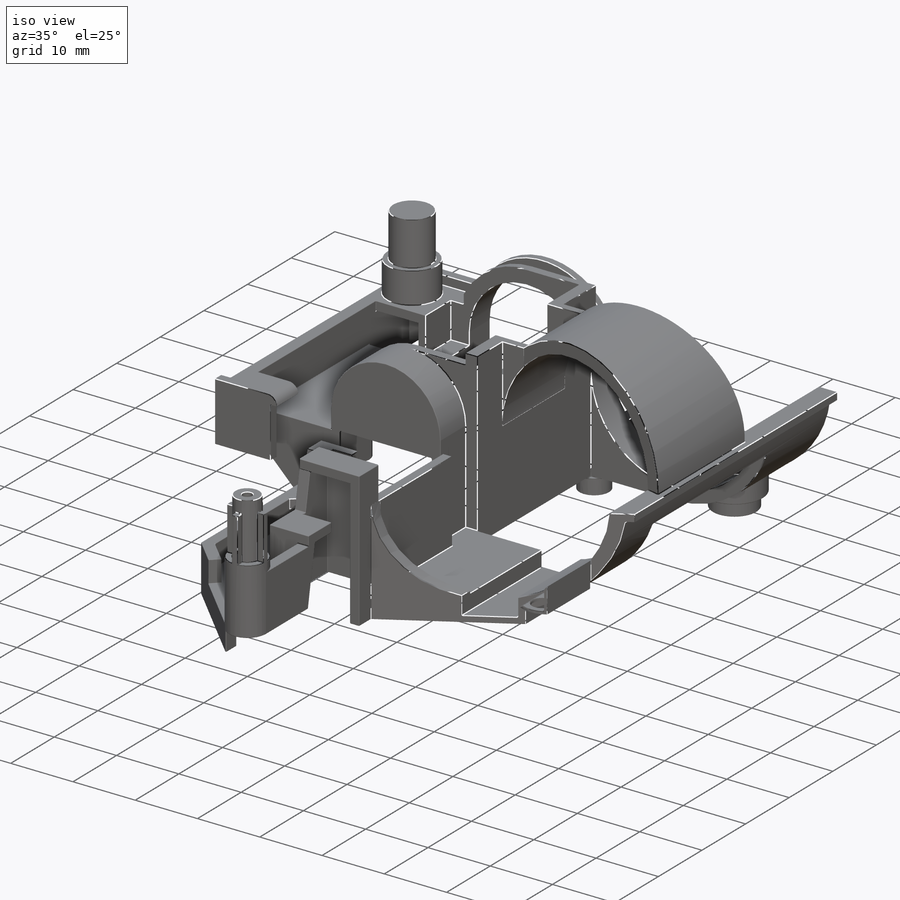
[diagram: iso view]
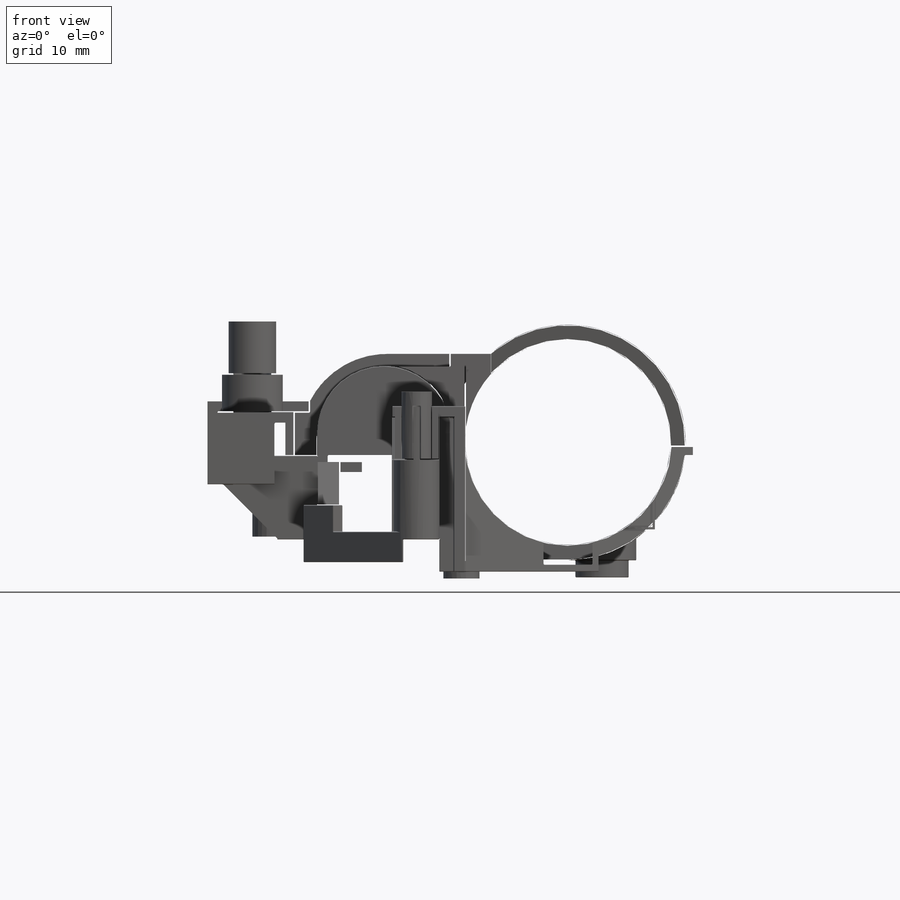
[diagram: front view]
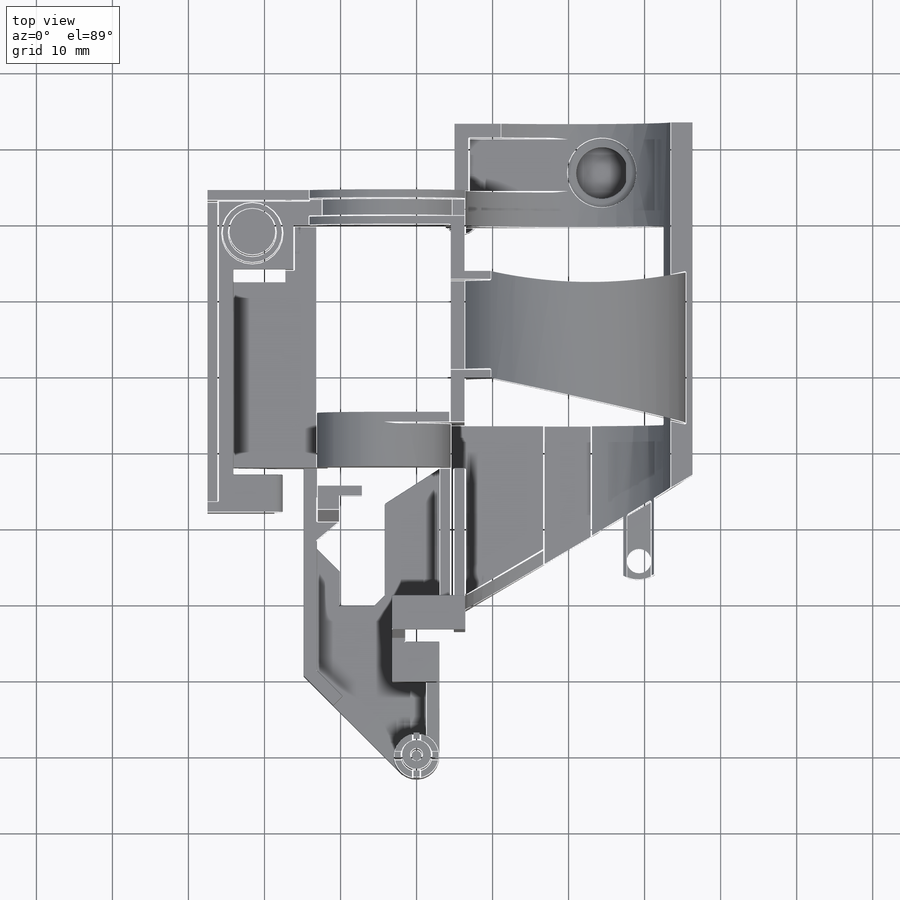
[diagram: top view]
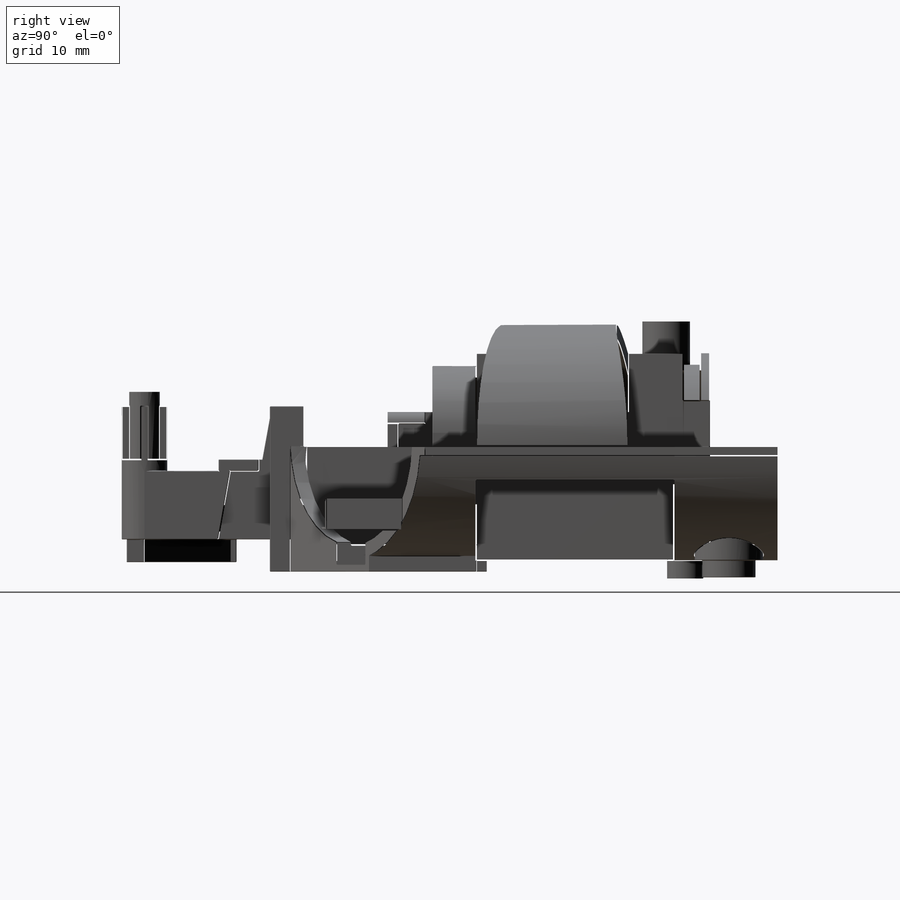
[diagram: right view]
SOLIDWORKS PART (.sldprt)
format: sldprt  version: not decoded by parser v0  size: 6,685,696 bytes
history: native  units: mm
features: sketch x89, fillet x53, extrude x46, cut_extrude x42, plane x2, boolean_combine x2, material x1, chamfer x1 (+11 scaffold rows collapsed)
feature tree (247):
  scaffold x11  (default folders/planes/origin — collapsed)
  material  "Material <not specified>"
  sketch  "Sketch2"  dims[c1.D1=6.0mm c1.D2=15.0mm c1.D3=4.5mm c1.D4=18.0mm c1.D5=~11.635901mm c2.D5=45.0deg c2.D6=27.27mm c2.D7=1.5mm c2.D8=4.5mm c2.D9=5.25mm c2.D10=1.75mm c2.D11=1.75mm c2.D12=12.25mm c3.D9=1.75mm c3.D10=1.75mm c3.D11=5.25mm c3.D12=12.25mm c3.D13=4.25mm c3.D14=4.5mm c3.D15=4.5mm c3.D16=2.0mm c3.D17=12.0mm c3.D18=5.0mm c3.D19=~4.644291mm c4.D18=0.0mm]
  extrude  "Boss-Extrude2"  Depth=1mm
  sketch  "Sketch3"  dims[D1=6.0mm]
  extrude  "Boss-Extrude3"  Depth=9.5mm
  sketch  "Sketch4"  dims[D1=4.0mm]
  extrude  "Boss-Extrude4"  Depth=9mm
  sketch  "Sketch5"  dims[c1.D1=~0.808675mm c1.D2=~8.167619mm c2.D1=~8.167619mm c2.D2=~1.455615mm c3.D1=~2.803407mm c3.D2=0.5mm c3.D3=0.5mm c3.D4=0.5mm c3.D5=0.5mm c3.D6=0.5mm c4.D1=0.0mm]
  extrude  "Boss-Extrude5"  Depth=7mm
  sketch  "Sketch6"  dims[D1=3.5mm]
  cut_extrude  "Cut-Extrude1"  Depth=9mm
  sketch  "Sketch7"  dims[D1=1.5mm]
  cut_extrude  "Cut-Extrude2"  Depth=9mm
  sketch  "Sketch8"  dims[D1=5.5mm D2=1.75mm]
  extrude  "Boss-Extrude6"  Depth=3.5mm
  sketch  "Sketch9"  dims[c1.D1=1.75mm c1.D2=1.5mm c1.D3=1.75mm c1.D4=~2.418932mm c2.D3=~11.349242mm]
  extrude  "Boss-Extrude8"  Depth=3mm
  sketch  "Sketch10"  dims[D1=1.75mm D2=5.25mm D3=1.75mm]
  extrude  "Boss-Extrude9"  Depth=8mm
  sketch  "Sketch11"  dims[D1=5.25mm D2=6.25mm]
  extrude  "Boss-Extrude10"  Depth=1.5mm
  sketch  "Sketch14"  dims[D1=6.0mm]
  extrude  "Boss-Extrude11"  Depth=16.5mm
  sketch  "Sketch15"  dims[c1.D1=7.0mm c1.D2=~0.661502mm c2.D1=0.5mm]
  cut_extrude  "Cut-Extrude3"  Depth=16.5mm
  sketch  "Sketch16"  dims[c1.D1=1.5mm c1.D2=~3.844208mm c2.D2=100.0deg c2.D3=1.5mm]
  cut_extrude  "Cut-Extrude4"  [1 undecoded]
  sketch  "Sketch17"  dims[c1.D1=~14.621366mm c1.D2=~3.064231mm c2.D1=1.5mm c2.D2=1.0mm c2.D3=0.0mm c2.D4=0.0mm]
  cut_extrude  "Cut-Extrude5"  Depth=4mm
  sketch  "Sketch18"  dims[D1=1.5mm]
  cut_extrude  "Cut-Extrude6"  Depth=4mm
  sketch  "Sketch19"  dims[D1=3.25mm D2=3.0mm D3=5.75mm D4=1.0mm]
  extrude  "Boss-Extrude12"  Depth=1.5mm
  sketch  "Sketch20"  dims[c1.D1=~2.550746mm c1.D2=~3.397264mm c2.D1=0.0mm c2.D2=0.0mm]
  extrude  "Boss-Extrude13"  Depth=5.75mm
  sketch  "Sketch21"  dims[c1.D1=~1.263389mm c1.D2=~7.505041mm c2.D1=1.5mm c2.D2=6.0mm]
  extrude  "Boss-Extrude14"  Depth=1.5mm
  chamfer  "Chamfer2"  Distance=5.75mm
  sketch  "Sketch23"  dims[c1.D1=11.0mm c1.D2=14.5mm c1.D3=~14.584584mm c1.D4=~13.091665mm c2.D3=10.75mm c2.D4=4.5mm c3.D4=45.0deg c3.D3=2.0mm c4.D4=~11.972625mm c5.D4=45.0deg]
  extrude  "Boss-Extrude15"  Depth=1.75mm
  sketch  "Sketch24"  dims[D1=1.75mm D2=16.5mm]
  extrude  "Boss-Extrude16"  Depth=34.75mm
  sketch  "Sketch25"  dims[c1.D1=~7.575987mm c1.D2=~7.488676mm c2.D1=9.0mm c2.D2=9.5mm]
  extrude  "Boss-Extrude17"  Depth=42.5mm
  sketch  "Sketch26"  dims[c1.D1=~7.506328mm c1.D2=~3.461811mm c2.D1=1.5mm c2.D2=6.0mm c2.D3=1.5mm c2.D4=~10.925746mm c3.D2=6.0mm]
  cut_extrude  "Cut-Extrude7"  Depth=5.5mm
  sketch  "Sketch27"  dims[c1.D1=~38.59953mm c1.D2=~1.665492mm c2.D1=1.5mm c2.D2=1.5mm c2.D3=1.5mm]
  cut_extrude  "Cut-Extrude8"  Depth=8mm
  sketch  "Sketch28"  dims[D1=1.5mm D2=6.0mm]
  extrude  "Boss-Extrude18"  Depth=1mm
  fillet  "Fillet1"  Radius=1.5mm
  sketch  "Sketch29"  dims[c1.D1=~1.807219mm c1.D2=~15.814924mm c2.D1=3.0mm c2.D2=14.5mm c2.D3=9.5mm c2.D4=~3.410836mm c3.D3=4.75mm c3.D4=9.5mm c3.D1=14.5mm c3.D2=3.0mm c4.D3=1.5mm c4.D4=4.25mm c4.D5=3.0mm c5.D3=1.5mm c5.D1=3.0mm c5.D2=4.25mm c6.D3=0.0mm c6.D4=1.5mm]
  sketch  "Sketch34"  dims[c1.D1=~7.17326mm c1.D2=~5.576333mm c2.D1=~10.611061mm c2.D2=~6.937667mm c3.D1=9.0mm c3.D2=7.0mm c4.D1=~6.308542mm c4.D2=~6.54109mm c5.D1=9.0mm c5.D2=8.0mm c5.D3=0.0mm c5.D4=1.5mm]
  extrude  "Boss-Extrude27"  Depth=1.5mm
  sketch  "Sketch35"  dims[c1.D1=8.0mm c1.D2=~7.480313mm c2.D1=0.0mm]
  extrude  "Boss-Extrude29"  Depth=5.75mm
  cut_extrude  "Cut-Extrude10"  Depth=12mm
  sketch  "Sketch36"  dims[D1=8.0mm D2=4.25mm D3=4.5mm]
  extrude  "Boss-Extrude32"  Depth=5mm
  sketch  "Sketch37"  dims[D1=6.25mm]
  extrude  "Boss-Extrude33"  Depth=7mm
  sketch  "Sketch38"  dims[c1.D1=~12.688242mm c1.D2=~12.688242mm c1.D5=18.5mm c2.D1=0.0mm c2.D2=6.25mm c2.D3=24.0mm c2.D4=1.0mm c3.D3=0.0mm c3.D6=18.25mm c3.D7=5.72mm]
  extrude  "Boss-Extrude34"  Depth=4.75mm
  sketch  "Sketch39"  dims[D1=3.25mm D2=2.0mm]
  extrude  "Boss-Extrude35"  Depth=5.75mm
  sketch  "Sketch40"  dims[D2=20.5mm D1=1.5mm]
  cut_extrude  "Cut-Extrude11"  Depth=2.25mm
  sketch  "Sketch41"  dims[D1=2.25mm D2=~1.722251mm]
  cut_extrude  "Cut-Extrude12"  Depth=1.5mm
  sketch  "Sketch42"  dims[D1=2.25mm D2=~1.722251mm]
  cut_extrude  "Cut-Extrude13"  Depth=1.5mm
  sketch  "Sketch43"  dims[c1.D1=17.5mm c1.D2=4.5mm c2.D1=0.0mm]
  extrude  "Boss-Extrude36"  Depth=2.25mm
  sketch  "Sketch45"  dims[c1.D1=~6.768957mm c1.D2=~1.338021mm c2.D1=1.5mm c2.D2=9.0mm]
  extrude  "Boss-Extrude37"  [1 undecoded]
  sketch  "Sketch46"  dims[c1.D7=~8.799621mm c1.D1=1.5mm c1.D2=0.0mm c1.D3=0.0mm c1.D4=0.0mm c1.D5=3.0mm c1.D6=3.0mm c2.D7=1.5mm]
  extrude  "Boss-Extrude40"  Depth=7.25mm
  sketch  "Sketch49"  dims[D2=~14.599242mm D1=1.5mm]
  cut_extrude  "Cut-Extrude14"  Depth=5.75mm
  sketch  "Sketch50"  dims[D1=~8.721049mm]
  extrude  "Boss-Extrude41"  Depth=1.25mm
  fillet  "Fillet2"  Radius=5mm
  sketch  "Sketch51"  dims[c1.D1=24.5mm c1.D2=~1.824905mm c2.D1=2.0mm]
  extrude  "Boss-Extrude42"  [1 undecoded]
  sketch  "Sketch52"  dims[D1=~13.710194mm]
  extrude  "Boss-Extrude43"  Depth=1.5mm
  sketch  "Sketch53"  dims[D1=1.5mm D2=2.0mm]
  extrude  "Boss-Extrude44"  [1 undecoded]
  sketch  "Sketch54"  dims[c1.D1=~62.764125mm c1.D2=0.625mm c2.D1=~1.400758mm]
  extrude  "Boss-Extrude45"  Depth=4.25mm
  sketch  "Sketch55"  dims[D1=26.0mm]
  extrude  "Boss-Extrude46"  Depth=2.75mm
  sketch  "Sketch56"  dims[D1=0.0mm D2=1.25mm D3=3.25mm D4=1.25mm]
  cut_extrude  "Cut-Extrude15"  Depth=1.5mm
  sketch  "Sketch57"  dims[D1=5.0mm D2=2.5mm D3=12.0mm D4=8.5mm]
  extrude  "Boss-Extrude47"  Depth=8.5mm
  sketch  "Sketch58"  dims[c1.D1=~3.111159mm c1.D2=~1.118766mm c2.D1=~3.112641mm c2.D2=~1.118766mm c3.D1=~1.339483mm c3.D2=~2.819834mm c4.D1=1.0mm c4.D2=0.5mm c4.D3=1.0mm c4.D4=0.5mm c4.D5=1.0mm c4.D6=0.5mm c4.D7=10.25mm c4.D8=5.125mm c4.D9=0.0mm c4.D10=0.0mm]
  extrude  "Boss-Extrude48"  Depth=2.75mm
  sketch  "Sketch59"  dims[c1.D1=~16.076707mm c1.D2=24.5mm c2.D1=0.0mm]
  cut_extrude  "Cut-Extrude16"  Depth=0.5mm
  sketch  "Sketch60"
  sketch  "Sketch61"  dims[c1.D1=~4.589522mm c1.D3=5.0mm c2.D1=0.0mm c2.D2=0.0mm]
  cut_extrude  "Cut-Extrude17"  Depth=12.5mm
  sketch  "Sketch62"  dims[D1=0.0mm]
  cut_extrude  "Cut-Extrude18"  Depth=1mm
  sketch  "Sketch66"  dims[c1.D1=~30.174857mm c1.D2=~34.309121mm c2.D1=0.0mm c2.D2=31.5mm c2.D3=31.0mm]
  extrude  "Boss-Extrude51"  Depth=2mm
  sketch  "Sketch68"  dims[c1.D1=5.7906mm c1.D2=~0.557529mm c2.D1=0.0mm c2.D2=0.0mm]
  cut_extrude  "Cut-Extrude19"  [1 undecoded]
  sketch  "Sketch69"  dims[c1.D1=~3.347903mm c1.D2=5.0mm c1.D4=5.0mm c2.D1=41.5mm c2.D3=20.5mm c2.D4=~0.333116mm c3.D3=5.0mm c3.D4=1.5mm c3.D1=46.5mm]
  cut_extrude  "Cut-Extrude20"  Depth=36mm
  sketch  "Sketch70"  dims[D1=2.0mm D2=2.0mm D3=3.0mm]
  cut_extrude  "Cut-Extrude26"  Depth=69mm
  sketch  "Sketch71"  dims[D2=1.25mm D3=15.0mm D4=16.0mm D1=2.0mm]
  cut_extrude  "Cut-Extrude27"  Depth=69mm
  sketch  "Sketch72"  dims[D2=1.25mm D1=2.0mm]
  cut_extrude  "Cut-Extrude28"  Depth=69mm
  sketch  "Sketch73"  dims[D1=0.0mm D2=40.0mm]
  cut_extrude  "Cut-Extrude29"  [1 undecoded]
  sketch  "Sketch74"  dims[c1.D1=~15.980701mm c1.D2=~44.114554mm c2.D1=0.0mm]
  cut_extrude  "Cut-Extrude30"  [1 undecoded]
  sketch  "Sketch75"  dims[c1.D1=27.25mm c1.D2=3.0mm c2.D1=2.0mm]
  cut_extrude  "Cut-Extrude31"  [1 undecoded]
  sketch  "Sketch76"  dims[c1.D1=15.5mm c1.D2=0.0mm c2.D1=2.0mm]
  cut_extrude  "Cut-Extrude32"  Depth=69mm
  sketch  "Sketch77"  dims[c1.D1=~16.007086mm c1.D2=~3.967483mm c2.D1=2.0mm c2.D2=8.5mm c2.D3=7.0mm]
  cut_extrude  "Cut-Extrude33"  Depth=5.5mm
  sketch  "Sketch79"  dims[D2=~6.206923mm D1=2.0mm]
  cut_extrude  "Cut-Extrude34"  [1 undecoded]
  sketch  "Sketch80"  dims[c1.D1=~9.827316mm c1.D2=~25.880021mm c2.D1=2.0mm c2.D2=1.25mm]
  cut_extrude  "Cut-Extrude35"  Depth=5.5mm
  sketch  "Sketch81"  dims[c1.D1=~56.804418mm c1.D3=55.0mm c2.D1=2.0mm c2.D2=1.25mm c2.D4=0.0mm]
  cut_extrude  "Cut-Extrude36"  Depth=5.5mm
  sketch  "Sketch82"  dims[c1.D1=~28.114422mm c1.D2=~42.747748mm c2.D1=1.25mm c2.D2=0.0mm c2.D3=0.0mm]
  cut_extrude  "Cut-Extrude37"  Depth=10.5mm
  sketch  "Sketch84"  dims[c1.D1=~4.608681mm c1.D2=~25.58759mm c2.D1=0.0mm c2.D2=0.0mm]
  cut_extrude  "Cut-Extrude39"  Depth=10.5mm
  sketch  "Sketch85"  dims[D1=26.0mm D2=0.25mm]
  extrude  "Boss-Extrude53"  Depth=10.5mm
  sketch  "Sketch86"  dims[c1.D1=~6.15237mm c1.D2=~1.509262mm c2.D1=~4.654982mm c2.D2=~19.682722mm c3.D1=0.0mm c3.D2=0.0mm]
  cut_extrude  "Cut-Extrude40"  Depth=2mm
  sketch  "Sketch88"  dims[D1=0.0mm]
  extrude  "Boss-Extrude54"  [1 undecoded]
  sketch  "Sketch89"  dims[D2=~11.011859mm D1=1.75mm]
  cut_extrude  "Cut-Extrude41"  Depth=2mm
  sketch  "Sketch90"  dims[D1=0.0mm]
  extrude  "Boss-Extrude55"  [1 undecoded]
  sketch  "Sketch91"  dims[c1.D1=~4.279365mm c1.D2=~3.013669mm c2.D1=0.0mm c2.D2=0.0mm]
  extrude  "Boss-Extrude56"  [1 undecoded]
  sketch  "Sketch92"  dims[D1=~3.884433mm]
  extrude  "Boss-Extrude57"  [1 undecoded]
  sketch  "Sketch93"  dims[c1.D1=~11.029873mm c1.D2=~17.03533mm c2.D1=0.0mm c2.D2=0.0mm]
  cut_extrude  "Cut-Extrude42"  Depth=5.25mm
  sketch  "Sketch94"  dims[c1.D1=~4.163991mm c1.D2=~10.491008mm c2.D1=0.0mm c2.D2=2.0mm c2.D3=2.0mm c2.D4=0.0mm]
  cut_extrude  "Cut-Extrude43"  Depth=2mm
  sketch  "Sketch95"  dims[D1=~22.626602mm D2=~0.400758mm]
  extrude  "Boss-Extrude58"  Depth=2mm
  sketch  "Sketch96"  dims[D1=1.5mm D2=12.75mm D3=8.25mm D4=~1.741558mm]
  extrude  "Boss-Extrude59"  [1 undecoded]
  sketch  "Sketch97"  dims[c1.D1=~4.044552mm c1.D2=~6.827829mm c2.D1=1.0mm c2.D2=1.0mm c2.D3=1.0mm c2.D4=10.0mm]
  cut_extrude  "Cut-Extrude44"  Depth=23mm
  sketch  "Sketch98"  dims[D1=4.75mm D2=2.25mm D3=1.5mm D4=0.5mm]
  extrude  "Boss-Extrude60"  Depth=2.5mm
  plane  "Plane1"  Offset=7mm
  sketch  "Sketch99"  dims[D1=4.5mm D2=10.0mm D3=0.0mm D4=5.0mm]
  extrude  "Boss-Extrude61"  Depth=3.5mm
  plane  "Plane2"  Offset=23mm
  sketch  "Sketch101"  dims[c1.D1=31.0mm c1.D2=27.0mm c2.D1=~1.112169mm c2.D3=~13.845895mm c3.D1=0.0mm c3.D2=0.0mm c3.D3=~4.472329mm c4.D1=0.0mm]
  extrude  "Boss-Extrude62"  [1 undecoded]
  boolean_combine  "Combine1"
  boolean_combine  "Combine2"
  sketch  "Sketch102"  dims[D1=0.5mm]
  cut_extrude  "Cut-Extrude45"  [1 undecoded]
  sketch  "Sketch103"  dims[D1=3.0mm D2=1.6mm D3=2.5mm]
  cut_extrude  "Cut-Extrude46"  Depth=3.5mm
  sketch  "Sketch104"  dims[D1=9.0mm D2=0.0mm]
  extrude  "Boss-Extrude63"  Depth=3.5mm
  sketch  "Sketch105"  dims[D1=7.0mm]
  extrude  "Boss-Extrude64"  Depth=2.25mm
  sketch  "Sketch106"  dims[D1=9.0mm D2=0.0mm D3=0.0mm]
  cut_extrude  "Cut-Extrude47"  [1 undecoded]
  sketch  "Sketch107"  dims[D1=6.75mm]
  cut_extrude  "Cut-Extrude48"  Depth=3.75mm
  sketch  "Sketch108"  dims[c1.D1=~19.495872mm c1.D2=~3.667879mm c2.D1=0.0mm c2.D2=0.0mm c2.D3=0.0mm c2.D4=1.5mm]
  cut_extrude  "Cut-Extrude49"  [1 undecoded]
  fillet  "Fillet3"  Radius=0.1mm
  fillet  "Fillet4"  Radius=0.1mm
  fillet  "Fillet5"  Radius=0.1mm
  fillet  "Fillet6"  Radius=0.1mm
  fillet  "Fillet7"  Radius=0.1mm
  fillet  "Fillet8"  Radius=0.1mm
  fillet  "Fillet9"  Radius=0.1mm
  fillet  "Fillet10"  Radius=0.1mm
  fillet  "Fillet11"  Radius=0.1mm
  fillet  "Fillet12"  Radius=0.1mm
  fillet  "Fillet14"  Radius=0.1mm
  fillet  "Fillet15"  Radius=0.1mm
  fillet  "Fillet16"  Radius=0.1mm
  fillet  "Fillet17"  Radius=0.1mm
  fillet  "Fillet19"  Radius=0.1mm
  fillet  "Fillet20"  Radius=0.1mm
  fillet  "Fillet21"  Radius=0.1mm
  fillet  "Fillet22"  Radius=0.1mm
  fillet  "Fillet23"  Radius=0.1mm
  fillet  "Fillet24"  Radius=0.1mm
  fillet  "Fillet25"  Radius=0.1mm
  fillet  "Fillet26"  Radius=0.1mm
  fillet  "Fillet28"  Radius=0.1mm
  fillet  "Fillet29"  Radius=0.1mm
  fillet  "Fillet30"  Radius=0.1mm
  fillet  "Fillet31"  Radius=0.1mm
  fillet  "Fillet32"  Radius=0.1mm
  fillet  "Fillet33"  Radius=0.1mm
  fillet  "Fillet34"  Radius=0.1mm
  fillet  "Fillet35"  Radius=0.1mm
  fillet  "Fillet36"  Radius=0.1mm
  fillet  "Fillet37"  Radius=0.1mm
  fillet  "Fillet39"  Radius=0.05mm
  fillet  "Fillet40"  Radius=0.1mm
  fillet  "Fillet41"  Radius=0.1mm
  fillet  "Fillet45"  Radius=0.05mm
  fillet  "Fillet46"  Radius=0.1mm
  fillet  "Fillet47"  Radius=0.1mm
  fillet  "Fillet48"  Radius=0.1mm
  fillet  "Fillet50"  Radius=0.1mm
  fillet  "Fillet51"  Radius=0.1mm
  fillet  "Fillet52"  Radius=0.1mm
  fillet  "Fillet53"  Radius=0.05mm
  fillet  "Fillet55"  Radius=0.25mm
  fillet  "Fillet56"  Radius=0.1mm
  fillet  "Fillet57"  Radius=0.1mm
  fillet  "Fillet58"  Radius=0.1mm
  fillet  "Fillet59"  Radius=0.1mm
  fillet  "Fillet61"  Radius=0.1mm
  fillet  "Fillet62"  Radius=0.1mm
  fillet  "Fillet63"  Radius=0.1mm
decode coverage: 212 of 233 modeling features carry decoded parameters
note: ~ marks probable driven/reference dimensions
note: 18 parameter values undecoded
summary: no parameter record found for 18 features
note: suppression state not decoded; provenance and decode notes live in map.json
